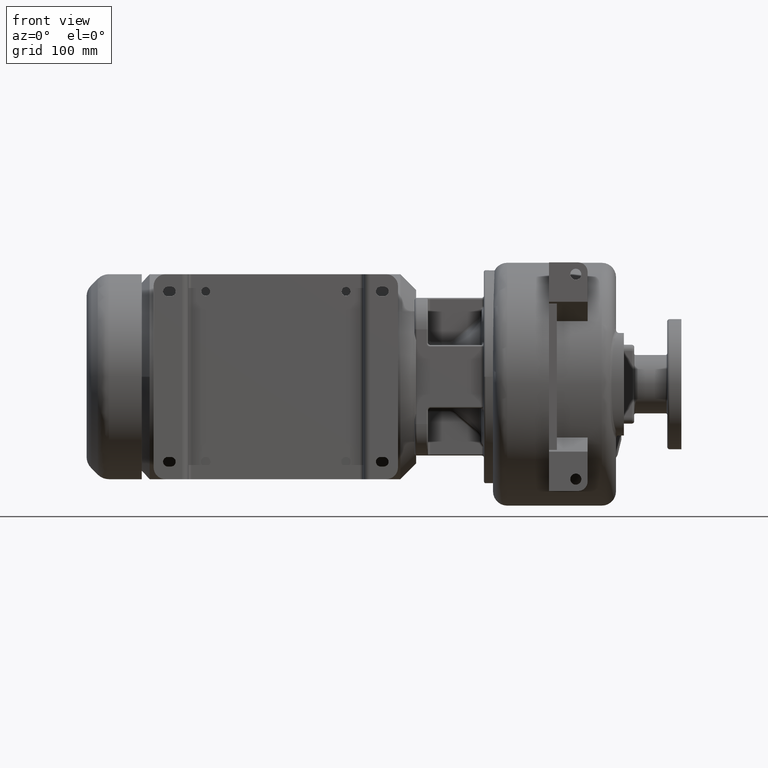
[diagram: clean part render]
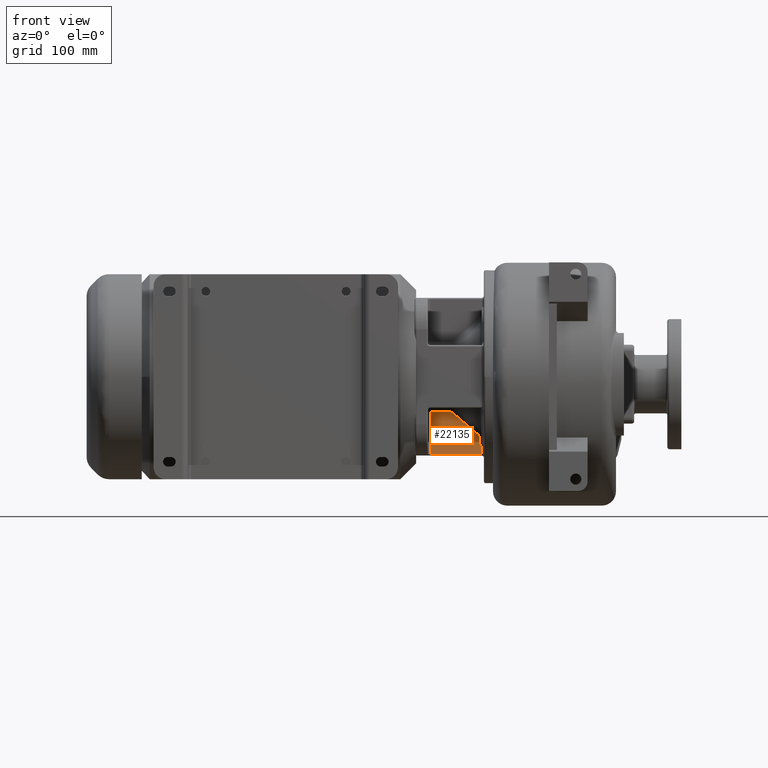
[diagram: same view with one face highlighted and labeled with its STEP entity id]
A machine part, front view. The second image highlights one B-rep face of the part: STEP entity #22135.
In plain terms, the highlighted planar face has unit normal (0, -1, 0).
Its self-contained STEP definition (entity closure, byte-faithful):
#8006=DIRECTION('',(1.E0,0.E0,-1.945793953314E-13));
#8007=VECTOR('',#8006,6.499999999993E1);
#8008=CARTESIAN_POINT('',(4.360000000001E2,-5.E0,-9.8E1));
#8009=LINE('',#8008,#8007);
#8010=DIRECTION('',(1.363544830051E-12,0.E0,-1.E0));
#8011=VECTOR('',#8010,5.219334109543E1);
#8012=CARTESIAN_POINT('',(4.36E2,-5.E0,-4.580665890457E1));
#8013=LINE('',#8012,#8011);
#8014=CARTESIAN_POINT('',(4.37E2,-5.E0,-4.479118216792E1));
#8015=CARTESIAN_POINT('',(4.369785900104E2,-5.E0,-4.479118380546E1));
#8016=CARTESIAN_POINT('',(4.369357738331E2,-5.E0,-4.479258201787E1));
#8017=CARTESIAN_POINT('',(4.368713883274E2,-5.E0,-4.479889963122E1));
#8018=CARTESIAN_POINT('',(4.368073595155E2,-5.E0,-4.480948288262E1));
#8019=CARTESIAN_POINT('',(4.367439997421E2,-5.E0,-4.482429110138E1));
#8020=CARTESIAN_POINT('',(4.366816761225E2,-5.E0,-4.484326848291E1));
#8021=CARTESIAN_POINT('',(4.366207117131E2,-5.E0,-4.486631437445E1));
#8022=CARTESIAN_POINT('',(4.365613068470E2,-5.E0,-4.489334534451E1));
#8023=CARTESIAN_POINT('',(4.365036767991E2,-5.E0,-4.492429857963E1));
#8024=CARTESIAN_POINT('',(4.364480676893E2,-5.E0,-4.495904722731E1));
#8025=CARTESIAN_POINT('',(4.363947492687E2,-5.E0,-4.499745201686E1));
#8026=CARTESIAN_POINT('',(4.363439640998E2,-5.E0,-4.503935661773E1));
#8027=CARTESIAN_POINT('',(4.362959227662E2,-5.E0,-4.508459130465E1));
#8028=CARTESIAN_POINT('',(4.362508478980E2,-5.E0,-4.513299115513E1));
#8029=CARTESIAN_POINT('',(4.362089328295E2,-5.E0,-4.518435189322E1));
#8030=CARTESIAN_POINT('',(4.361703747319E2,-5.E0,-4.523847100845E1));
#8031=CARTESIAN_POINT('',(4.361353630067E2,-5.E0,-4.529511838642E1));
#8032=CARTESIAN_POINT('',(4.361040656605E2,-5.E0,-4.535402684395E1));
#8033=CARTESIAN_POINT('',(4.360766481487E2,-5.E0,-4.541493844203E1));
#8034=CARTESIAN_POINT('',(4.360532133290E2,-5.E0,-4.547760981313E1));
#8035=CARTESIAN_POINT('',(4.360338728197E2,-5.E0,-4.554180805610E1));
#8036=CARTESIAN_POINT('',(4.360187489638E2,-5.E0,-4.560719975137E1));
#8037=CARTESIAN_POINT('',(4.360079177657E2,-5.E0,-4.567339506019E1));
#8038=CARTESIAN_POINT('',(4.360014384575E2,-5.E0,-4.574006190243E1));
#8039=CARTESIAN_POINT('',(4.360000016270E2,-5.E0,-4.578444884213E1));
#8040=CARTESIAN_POINT('',(4.36E2,-5.E0,-4.580665890457E1));
#8042=DIRECTION('',(-1.E0,0.E0,0.E0));
#8043=VECTOR('',#8042,2.425777606093E1);
#8044=CARTESIAN_POINT('',(4.612577760609E2,-5.E0,-4.479118216792E1));
#8045=LINE('',#8044,#8043);
#8046=CARTESIAN_POINT('',(4.644717141094E2,-4.999999999640E0,
-4.597899692736E1));
#8047=CARTESIAN_POINT('',(4.644159119107E2,-4.999999999640E0,
-4.593147291602E1));
#8048=CARTESIAN_POINT('',(4.643023162756E2,-5.000000000167E0,
-4.583894223823E1));
#8049=CARTESIAN_POINT('',(4.641257435354E2,-4.999999999955E0,
-4.570752811880E1));
#8050=CARTESIAN_POINT('',(4.639435858942E2,-5.000000000012E0,
-4.558403253472E1));
#8051=CARTESIAN_POINT('',(4.637562513724E2,-4.999999999997E0,
-4.546873440340E1));
#8052=CARTESIAN_POINT('',(4.635642140914E2,-5.000000000001E0,
-4.536191091575E1));
#8053=CARTESIAN_POINT('',(4.633679582185E2,-5.E0,-4.526382423465E1));
#8054=CARTESIAN_POINT('',(4.631678861105E2,-5.E0,-4.517462524333E1));
#8055=CARTESIAN_POINT('',(4.629643443817E2,-5.E0,-4.509443796179E1));
#8056=CARTESIAN_POINT('',(4.627576851471E2,-5.E0,-4.502340029347E1));
#8057=CARTESIAN_POINT('',(4.625482693869E2,-5.E0,-4.496159844032E1));
#8058=CARTESIAN_POINT('',(4.623364369873E2,-5.E0,-4.490912834142E1));
#8059=CARTESIAN_POINT('',(4.621225898103E2,-5.E0,-4.486610063999E1));
#8060=CARTESIAN_POINT('',(4.619072611938E2,-5.E0,-4.483259517783E1));
#8061=CARTESIAN_POINT('',(4.616909792642E2,-5.E0,-4.480867619195E1));
#8062=CARTESIAN_POINT('',(4.614742240822E2,-5.E0,-4.479436147718E1));
#8063=CARTESIAN_POINT('',(4.613299206990E2,-5.E0,-4.479118457388E1));
#8064=CARTESIAN_POINT('',(4.612577760609E2,-5.E0,-4.479118216792E1));
#8066=CARTESIAN_POINT('',(4.962139380484E2,-4.999999999936E0,
-7.286682430579E1));
#8067=CARTESIAN_POINT('',(4.922537263461E2,-4.999999995021E0,
-6.952384495441E1));
#8068=CARTESIAN_POINT('',(4.846215953032E2,-4.999999997855E0,
-6.307579094145E1));
#8069=CARTESIAN_POINT('',(4.740506559736E2,-5.000000014978E0,
-5.412418666843E1));
#8070=CARTESIAN_POINT('',(4.675688438997E2,-4.999999966482E0,
-4.861684199406E1));
#8071=CARTESIAN_POINT('',(4.644717141094E2,-4.999999999640E0,
-4.597899692736E1));
#8073=CARTESIAN_POINT('',(4.98E2,-5.E0,-7.671890906735E1));
#8074=CARTESIAN_POINT('',(4.979999973700E2,-5.E0,-7.664604463190E1));
#8075=CARTESIAN_POINT('',(4.979968404933E2,-5.E0,-7.650031446589E1));
#8076=CARTESIAN_POINT('',(4.979826252175E2,-5.E0,-7.628145042843E1));
#8077=CARTESIAN_POINT('',(4.979588848774E2,-5.E0,-7.606311231337E1));
#8078=CARTESIAN_POINT('',(4.979256371813E2,-5.E0,-7.584579992428E1));
#8079=CARTESIAN_POINT('',(4.978829593869E2,-5.E0,-7.563005698343E1));
#8080=CARTESIAN_POINT('',(4.978309426506E2,-5.E0,-7.541642244576E1));
#8081=CARTESIAN_POINT('',(4.977697172005E2,-5.E0,-7.520537746745E1));
#8082=CARTESIAN_POINT('',(4.976994084798E2,-5.E0,-7.499726023209E1));
#8083=CARTESIAN_POINT('',(4.976201214777E2,-5.E0,-7.479242588100E1));
#8084=CARTESIAN_POINT('',(4.975320030834E2,-5.E0,-7.459126041015E1));
#8085=CARTESIAN_POINT('',(4.974352603072E2,-5.E0,-7.439419334534E1));
#8086=CARTESIAN_POINT('',(4.973300982670E2,-5.E0,-7.420165447783E1));
#8087=CARTESIAN_POINT('',(4.972167270891E2,-5.E0,-7.401399453993E1));
#8088=CARTESIAN_POINT('',(4.970953574842E2,-5.E0,-7.383151283870E1));
#8089=CARTESIAN_POINT('',(4.969661723190E2,-5.E0,-7.365451228444E1));
#8090=CARTESIAN_POINT('',(4.968294628879E2,-4.999999999999E0,
-7.348339261362E1));
#8091=CARTESIAN_POINT('',(4.966855869681E2,-5.000000000002E0,
-7.331856027710E1));
#8092=CARTESIAN_POINT('',(4.965349131243E2,-4.999999999992E0,
-7.316041339933E1));
#8093=CARTESIAN_POINT('',(4.963778167032E2,-5.000000000030E0,
-7.300927581850E1));
#8094=CARTESIAN_POINT('',(4.962692270527E2,-4.999999999936E0,
-7.291349951443E1));
#8095=CARTESIAN_POINT('',(4.962139380484E2,-4.999999999936E0,
-7.286682430579E1));
#8097=DIRECTION('',(-1.539148690283E-12,-6.929175256059E-14,1.E0));
#8098=VECTOR('',#8097,5.909076280381E0);
#8099=CARTESIAN_POINT('',(4.98E2,-5.E0,-8.262798534773E1));
#8100=LINE('',#8099,#8098);
#8101=CARTESIAN_POINT('',(5.05E2,-5.E0,-8.262798534781E1));
#8102=DIRECTION('',(0.E0,1.E0,0.E0));
#8103=DIRECTION('',(-6.25E-1,0.E0,-7.806247497998E-1));
#8104=AXIS2_PLACEMENT_3D('',#8101,#8102,#8103);
#8106=CARTESIAN_POINT('',(5.E2,-5.E0,-8.887298334621E1));
#8107=DIRECTION('',(0.E0,-1.E0,0.E0));
#8108=DIRECTION('',(1.E0,0.E0,0.E0));
#8109=AXIS2_PLACEMENT_3D('',#8106,#8107,#8108);
#8111=DIRECTION('',(0.E0,0.E0,1.E0));
#8112=VECTOR('',#8111,9.127016653805E0);
#8113=CARTESIAN_POINT('',(5.01E2,-5.E0,-9.800000000001E1));
#8114=LINE('',#8113,#8112);
#11364=CARTESIAN_POINT('',(5.01E2,-5.E0,-9.8E1));
#11366=VERTEX_POINT('',#11364);
#11462=VERTEX_POINT('',#8014);
#11463=VERTEX_POINT('',#8040);
#11466=CARTESIAN_POINT('',(4.612577760609E2,-5.E0,-4.479118216792E1));
#11467=VERTEX_POINT('',#11466);
#11469=VERTEX_POINT('',#8046);
#11471=VERTEX_POINT('',#8066);
#11473=VERTEX_POINT('',#8073);
#11476=CARTESIAN_POINT('',(4.98E2,-5.E0,-8.262798534773E1));
#11477=VERTEX_POINT('',#11476);
#11480=CARTESIAN_POINT('',(5.00625E2,-5.E0,-8.809235859641E1));
#11481=VERTEX_POINT('',#11480);
#11484=CARTESIAN_POINT('',(5.01E2,-5.E0,-8.887298334621E1));
#11485=VERTEX_POINT('',#11484);
#11492=CARTESIAN_POINT('',(4.360000000001E2,-5.E0,-9.8E1));
#11493=VERTEX_POINT('',#11492);
#22109=CARTESIAN_POINT('',(4.33E2,-5.E0,-4.220485754034E1));
#22110=DIRECTION('',(0.E0,-1.E0,0.E0));
#22111=DIRECTION('',(0.E0,0.E0,-1.E0));
#22112=AXIS2_PLACEMENT_3D('',#22109,#22110,#22111);
#22113=PLANE('',#22112);
#22114=ORIENTED_EDGE('',*,*,#13005,.F.);
#22115=ORIENTED_EDGE('',*,*,#13034,.F.);
#22117=ORIENTED_EDGE('',*,*,#22116,.F.);
#22119=ORIENTED_EDGE('',*,*,#22118,.F.);
#22121=ORIENTED_EDGE('',*,*,#22120,.F.);
#22123=ORIENTED_EDGE('',*,*,#22122,.F.);
#22125=ORIENTED_EDGE('',*,*,#22124,.F.);
#22127=ORIENTED_EDGE('',*,*,#22126,.F.);
#22129=ORIENTED_EDGE('',*,*,#22128,.F.);
#22131=ORIENTED_EDGE('',*,*,#22130,.F.);
#22132=ORIENTED_EDGE('',*,*,#22101,.F.);
#22133=EDGE_LOOP('',(#22114,#22115,#22117,#22119,#22121,#22123,#22125,#22127,
#22129,#22131,#22132));
#22134=FACE_OUTER_BOUND('',#22133,.F.);
#22135=ADVANCED_FACE('',(#22134),#22113,.T.);
#8041=B_SPLINE_CURVE_WITH_KNOTS('',3,(#8014,#8015,#8016,#8017,#8018,#8019,#8020,
#8021,#8022,#8023,#8024,#8025,#8026,#8027,#8028,#8029,#8030,#8031,#8032,#8033,
#8034,#8035,#8036,#8037,#8038,#8039,#8040),.UNSPECIFIED.,.F.,.F.,(4,1,1,1,1,1,1,
1,1,1,1,1,1,1,1,1,1,1,1,1,1,1,1,1,4),(0.E0,4.166666666667E-2,8.333333333333E-2,
1.25E-1,1.666666666667E-1,2.083333333333E-1,2.5E-1,2.916666666667E-1,
3.333333333333E-1,3.75E-1,4.166666666667E-1,4.583333333333E-1,5.E-1,
5.416666666667E-1,5.833333333333E-1,6.25E-1,6.666666666667E-1,7.083333333333E-1,
7.5E-1,7.916666666667E-1,8.333333333333E-1,8.75E-1,9.166666666667E-1,
9.583333333333E-1,1.E0),.UNSPECIFIED.);
#8065=B_SPLINE_CURVE_WITH_KNOTS('',3,(#8046,#8047,#8048,#8049,#8050,#8051,#8052,
#8053,#8054,#8055,#8056,#8057,#8058,#8059,#8060,#8061,#8062,#8063,#8064),
.UNSPECIFIED.,.F.,.F.,(4,1,1,1,1,1,1,1,1,1,1,1,1,1,1,1,4),(0.E0,6.25E-2,1.25E-1,
1.875E-1,2.5E-1,3.125E-1,3.75E-1,4.375E-1,5.E-1,5.625E-1,6.25E-1,6.875E-1,
7.5E-1,8.125E-1,8.75E-1,9.375E-1,1.E0),.UNSPECIFIED.);
#8072=B_SPLINE_CURVE_WITH_KNOTS('',3,(#8066,#8067,#8068,#8069,#8070,#8071),
.UNSPECIFIED.,.F.,.F.,(4,1,1,4),(0.E0,3.333333333333E-1,6.666666666667E-1,1.E0),
.UNSPECIFIED.);
#8096=B_SPLINE_CURVE_WITH_KNOTS('',3,(#8073,#8074,#8075,#8076,#8077,#8078,#8079,
#8080,#8081,#8082,#8083,#8084,#8085,#8086,#8087,#8088,#8089,#8090,#8091,#8092,
#8093,#8094,#8095),.UNSPECIFIED.,.F.,.F.,(4,1,1,1,1,1,1,1,1,1,1,1,1,1,1,1,1,1,1,
1,4),(0.E0,5.E-2,1.E-1,1.5E-1,2.E-1,2.5E-1,3.E-1,3.5E-1,4.E-1,4.5E-1,5.E-1,
5.5E-1,6.E-1,6.5E-1,7.E-1,7.5E-1,8.E-1,8.5E-1,9.E-1,9.5E-1,1.E0),.UNSPECIFIED.);
#8105=CIRCLE('',#8104,7.E0);
#8110=CIRCLE('',#8109,1.E0);
#13005=EDGE_CURVE('',#11493,#11366,#8009,.T.);
#13034=EDGE_CURVE('',#11463,#11493,#8013,.T.);
#22101=EDGE_CURVE('',#11366,#11485,#8114,.T.);
#22116=EDGE_CURVE('',#11462,#11463,#8041,.T.);
#22118=EDGE_CURVE('',#11467,#11462,#8045,.T.);
#22120=EDGE_CURVE('',#11469,#11467,#8065,.T.);
#22122=EDGE_CURVE('',#11471,#11469,#8072,.T.);
#22124=EDGE_CURVE('',#11473,#11471,#8096,.T.);
#22126=EDGE_CURVE('',#11477,#11473,#8100,.T.);
#22128=EDGE_CURVE('',#11481,#11477,#8105,.T.);
#22130=EDGE_CURVE('',#11485,#11481,#8110,.T.);